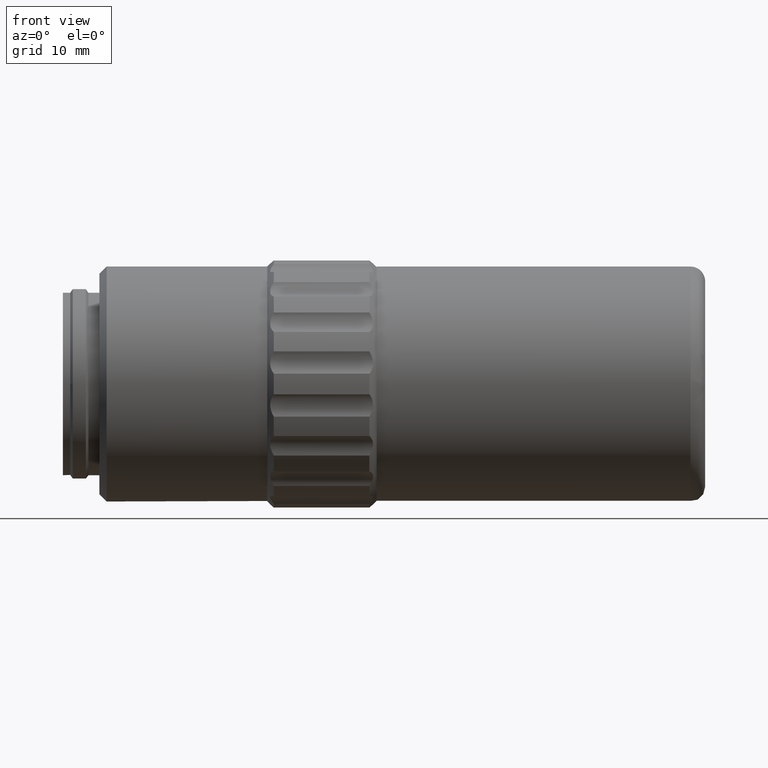
[diagram: clean part render]
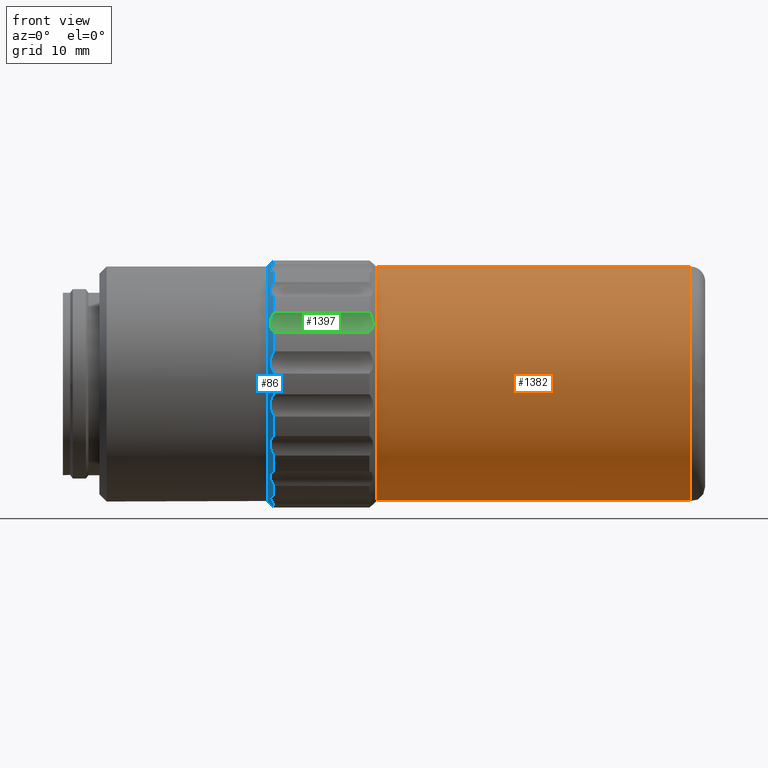
[diagram: same view with three faces highlighted in distinct colors, each labeled with its STEP entity id]
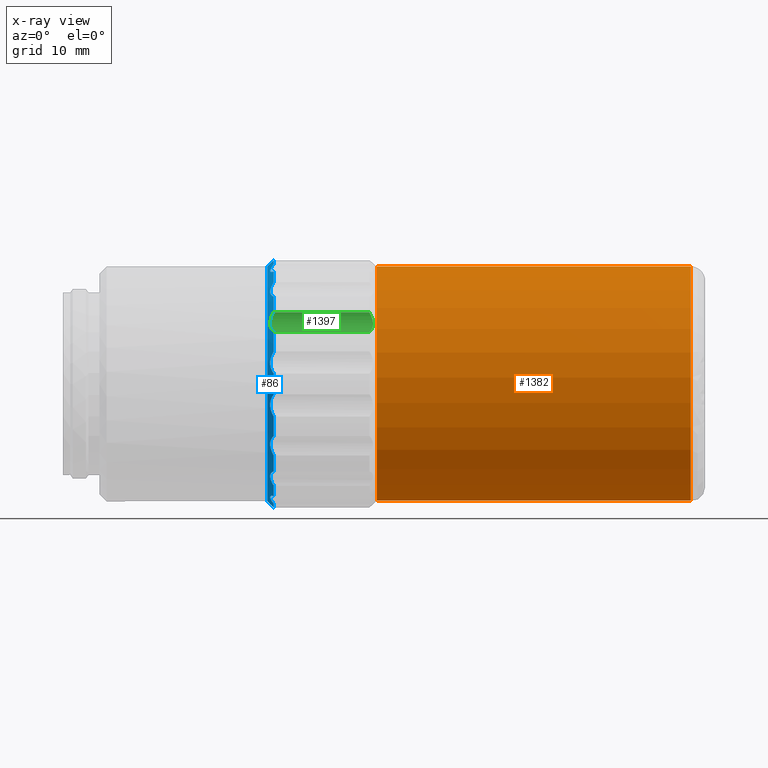
[diagram: x-ray of the same camera — body ghosted, the three highlighted faces saturated]
A machine part, front view with three faces highlighted in distinct colors.
The next image is the same camera in x-ray (body ghosted, the three faces saturated) — at least one of them is partly hidden behind the body in this view.
Their STEP definitions:

[orange] entity #1382 — the highlighted cylindrical surface (bore or boss wall) has radius 16.1 mm, axis along (-1, 0, 0).
#197 = EDGE_LOOP ( 'NONE', ( #1366 ) ) ;
#219 = CYLINDRICAL_SURFACE ( 'NONE', #1283, 16.10000000000000142 ) ;
#323 = EDGE_LOOP ( 'NONE', ( #825 ) ) ;
#419 = CARTESIAN_POINT ( 'NONE',  ( 61.03703999999999752, 46.02096199999999726, 0.000000000000000000 ) ) ;
#567 = CARTESIAN_POINT ( 'NONE',  ( 50.33704000000000178, 46.02096199999999726, 16.10000000000000142 ) ) ;
#581 = CARTESIAN_POINT ( 'NONE',  ( 50.33704000000000178, 46.02096199999999726, 0.000000000000000000 ) ) ;
#673 = FACE_OUTER_BOUND ( 'NONE', #197, .T. ) ;
#746 = DIRECTION ( 'NONE',  ( 1.000000000000000000, -0.000000000000000000, -0.000000000000000000 ) ) ;
#825 = ORIENTED_EDGE ( 'NONE', *, *, #1693, .T. ) ;
#857 = DIRECTION ( 'NONE',  ( -1.000000000000000000, 0.000000000000000000, 0.000000000000000000 ) ) ;
#994 = AXIS2_PLACEMENT_3D ( 'NONE', #581, #746, #1415 ) ;
#1018 = CARTESIAN_POINT ( 'NONE',  ( 93.33704000000001599, 46.02096199999999726, 0.000000000000000000 ) ) ;
#1052 = VERTEX_POINT ( 'NONE', #567 ) ;
#1209 = CIRCLE ( 'NONE', #1423, 16.10000000000000142 ) ;
#1283 = AXIS2_PLACEMENT_3D ( 'NONE', #419, #2117, #1583 ) ;
#1366 = ORIENTED_EDGE ( 'NONE', *, *, #1455, .T. ) ;
#1382 = ADVANCED_FACE ( 'NONE', ( #673, #1801 ), #219, .T. ) ;
#1415 = DIRECTION ( 'NONE',  ( 0.000000000000000000, 0.000000000000000000, 1.000000000000000000 ) ) ;
#1423 = AXIS2_PLACEMENT_3D ( 'NONE', #1018, #857, #1541 ) ;
#1455 = EDGE_CURVE ( 'NONE', #1052, #1052, #1537, .T. ) ;
#1537 = CIRCLE ( 'NONE', #994, 16.10000000000000142 ) ;
#1541 = DIRECTION ( 'NONE',  ( 0.000000000000000000, 0.000000000000000000, 1.000000000000000000 ) ) ;
#1582 = VERTEX_POINT ( 'NONE', #1724 ) ;
#1583 = DIRECTION ( 'NONE',  ( 0.000000000000000000, 0.000000000000000000, 1.000000000000000000 ) ) ;
#1693 = EDGE_CURVE ( 'NONE', #1582, #1582, #1209, .T. ) ;
#1724 = CARTESIAN_POINT ( 'NONE',  ( 93.33704000000001599, 46.02096199999999726, 16.10000000000000142 ) ) ;
#1801 = FACE_OUTER_BOUND ( 'NONE', #323, .T. ) ;
#2117 = DIRECTION ( 'NONE',  ( -1.000000000000000000, 0.000000000000000000, 0.000000000000000000 ) ) ;

[blue] entity #86 — the highlighted conical surface has half-angle 45 deg.
#8 = VERTEX_POINT ( 'NONE', #1923 ) ;
#9 = DIRECTION ( 'NONE',  ( 0.000000000000000000, 0.000000000000000000, 1.000000000000000000 ) ) ;
#14 = CARTESIAN_POINT ( 'NONE',  ( 35.96396204701620292, 52.75789697862285266, 15.31241445645989430 ) ) ;
#28 = CARTESIAN_POINT ( 'NONE',  ( 35.73718579602898160, 62.29579183602519521, -2.721276841238320365 ) ) ;
#32 = CARTESIAN_POINT ( 'NONE',  ( 35.74888686446895747, 40.10850990309083386, -15.41763307084374013 ) ) ;
#40 = CARTESIAN_POINT ( 'NONE',  ( 36.23704000000001457, 29.61726367720591924, 4.463034991433914911 ) ) ;
#41 = CARTESIAN_POINT ( 'NONE',  ( 35.83116349261860023, 45.32016989863365808, -16.57981987161947401 ) ) ;
#46 = CARTESIAN_POINT ( 'NONE',  ( 36.23704000000000036, 46.02096199999999726, 0.000000000000000000 ) ) ;
#52 = VERTEX_POINT ( 'NONE', #1350 ) ;
#58 = EDGE_CURVE ( 'NONE', #1685, #1218, #1110, .T. ) ;
#62 = AXIS2_PLACEMENT_3D ( 'NONE', #1347, #845, #166 ) ;
#63 = VERTEX_POINT ( 'NONE', #1902 ) ;
#65 = CARTESIAN_POINT ( 'NONE',  ( 35.74985286887984870, 40.64711861377924151, -15.61454086166569155 ) ) ;
#71 = B_SPLINE_CURVE_WITH_KNOTS ( 'NONE', 3,
 ( #298, #278, #817, #830, #110, #1695, #1515, #992, #324, #1827, #1683, #961, #1503, #1647 ),
 .UNSPECIFIED., .F., .F.,
 ( 4, 2, 2, 2, 2, 2, 4 ),
 ( 1.110764993427085326E-17, 0.0008570537395405590899, 0.001285580609310832184, 0.001714107479081105169, 0.002142634348851378372, 0.002571161218621651357, 0.003428214958162191257 ),
 .UNSPECIFIED. ) ;
#72 = B_SPLINE_CURVE_WITH_KNOTS ( 'NONE', 3,
 ( #1948, #1403, #1050, #448, #1985, #1590, #2101, #1064, #214, #785, #1937, #14, #1928, #753 ),
 .UNSPECIFIED., .F., .F.,
 ( 4, 2, 2, 2, 2, 2, 4 ),
 ( 3.469446951953614189E-18, 0.0008570537395405902065, 0.001285580609310879021, 0.001714107479081167836, 0.002142634348851456868, 0.002571161218621745466, 0.003428214958162342178 ),
 .UNSPECIFIED. ) ;
#77 = B_SPLINE_CURVE_WITH_KNOTS ( 'NONE', 3,
 ( #684, #1362, #2230, #2215, #2055, #1711, #1875, #722, #516, #1043, #1187, #330, #2080, #1885 ),
 .UNSPECIFIED., .F., .F.,
 ( 4, 2, 2, 2, 2, 2, 4 ),
 ( 9.965227682168975268E-18, 0.0008570537395405649446, 0.001285580609310842375, 0.001714107479081119914, 0.002142634348851397454, 0.002571161218621674776, 0.003428214958162214675 ),
 .UNSPECIFIED. ) ;
#79 = CARTESIAN_POINT ( 'NONE',  ( 36.23704000000000747, 58.08791284195768867, 11.97450196783888821 ) ) ;
#81 = B_SPLINE_CURVE_WITH_KNOTS ( 'NONE', 3,
 ( #1258, #607, #1134, #1456, #425, #972, #1287, #279, #1844, #476, #299, #438, #89, #1988 ),
 .UNSPECIFIED., .F., .F.,
 ( 4, 2, 2, 2, 2, 2, 4 ),
 ( 0.000000000000000000, 0.0008570537395406043011, 0.001285580609310894851, 0.001714107479081185834, 0.002142634348851476384, 0.002571161218621767150, 0.003428214958162323529 ),
 .UNSPECIFIED. ) ;
#83 = CARTESIAN_POINT ( 'NONE',  ( 35.79583389907071478, 35.81385022434189835, 13.03947610223928244 ) ) ;
#86 = ADVANCED_FACE ( 'NONE', ( #1926, #1707 ), #1214, .T. ) ;
#89 = CARTESIAN_POINT ( 'NONE',  ( 36.08992233123989735, 47.35457561164052009, 16.80123075031171354 ) ) ;
#91 = CARTESIAN_POINT ( 'NONE',  ( 35.83116349261860023, 41.00885879755391983, 15.81961940227120245 ) ) ;
#101 = CARTESIAN_POINT ( 'NONE',  ( 35.79717978247136045, 35.81747045796283402, -13.04400552683793713 ) ) ;
#107 = EDGE_CURVE ( 'NONE', #2231, #1514, #1284, .T. ) ;
#110 = CARTESIAN_POINT ( 'NONE',  ( 35.79717978247138888, 62.22181512952327154, 3.433610011084526459 ) ) ;
#112 = DIRECTION ( 'NONE',  ( 0.000000000000000000, 9.796085511398439970E-15, 1.000000000000000000 ) ) ;
#114 = CARTESIAN_POINT ( 'NONE',  ( 35.73718579602896028, 35.52685220674475630, -12.73377765964754715 ) ) ;
#115 = CARTESIAN_POINT ( 'NONE',  ( 36.23704000000001457, 62.42466032279406107, 4.463034991433929122 ) ) ;
#119 = CARTESIAN_POINT ( 'NONE',  ( 35.79583389907067215, 31.40713848021169241, -7.787761549644949710 ) ) ;
#123 = CARTESIAN_POINT ( 'NONE',  ( 36.23704000000002168, 29.08007986503450581, -1.416514203673286065 ) ) ;
#130 = CARTESIAN_POINT ( 'NONE',  ( 35.96396204701619581, 31.01754010897463232, -7.399571673583173137 ) ) ;
#140 = CARTESIAN_POINT ( 'NONE',  ( 35.96396204701627397, 59.93088999195956035, -9.293558664531962776 ) ) ;
#144 = CARTESIAN_POINT ( 'NONE',  ( 36.23704000000000036, 46.02096199999999726, 0.000000000000000000 ) ) ;
#146 = B_SPLINE_CURVE_WITH_KNOTS ( 'NONE', 3,
 ( #1355, #654, #2012, #664, #475, #1853, #1149, #797, #2190, #841, #1525, #140, #1123, #1815 ),
 .UNSPECIFIED., .F., .F.,
 ( 4, 2, 2, 2, 2, 2, 4 ),
 ( 8.673617379884035472E-19, 0.0008570537395405658119, 0.001285580609310841074, 0.001714107479081116662, 0.002142634348851391816, 0.002571161218621667403, 0.003428214958162229421 ),
 .UNSPECIFIED. ) ;
#151 = CARTESIAN_POINT ( 'NONE',  ( 36.09018259085797808, 47.35495267834146915, -16.80145764331209080 ) ) ;
#154 = CARTESIAN_POINT ( 'NONE',  ( 35.96557154307955528, 59.93018010859523770, 9.297543592584471384 ) ) ;
#161 = CARTESIAN_POINT ( 'NONE',  ( 35.83116349261862155, 29.81471811820888007, 3.569201001427935616 ) ) ;
#162 = CARTESIAN_POINT ( 'NONE',  ( 36.23703999999999326, 36.32378364731472686, 13.96297718956139455 ) ) ;
#166 = DIRECTION ( 'NONE',  ( 0.000000000000000000, 8.163404592832032979E-16, 1.000000000000000000 ) ) ;
#170 = CARTESIAN_POINT ( 'NONE',  ( 36.23704000000000036, 46.02096199999999726, 0.000000000000000000 ) ) ;
#172 = DIRECTION ( 'NONE',  ( 1.000000000000000000, -0.000000000000000000, 0.000000000000000000 ) ) ;
#182 = CARTESIAN_POINT ( 'NONE',  ( 36.23704000000002168, 62.96184413496547450, -1.416514203673302941 ) ) ;
#184 = CARTESIAN_POINT ( 'NONE',  ( 35.83178862640948381, 29.81459741884976111, -3.571575765922808010 ) ) ;
#193 = EDGE_CURVE ( 'NONE', #371, #63, #2103, .T. ) ;
#198 = CARTESIAN_POINT ( 'NONE',  ( 36.23704000000002168, 46.02096199999999726, 0.000000000000000000 ) ) ;
#202 = CARTESIAN_POINT ( 'NONE',  ( 35.83116349261862155, 62.22720588179112866, -3.569201001427937392 ) ) ;
#205 = CARTESIAN_POINT ( 'NONE',  ( 36.08992233123988314, 36.24294634268020587, 13.72771975950780998 ) ) ;
#211 = CIRCLE ( 'NONE', #570, 17.00000000000000000 ) ;
#212 = CARTESIAN_POINT ( 'NONE',  ( 35.73718579602898160, 29.79689300327163792, -3.009155866290937453 ) ) ;
#214 = CARTESIAN_POINT ( 'NONE',  ( 35.74888686446897168, 51.93341409690916066, 15.41763307084375256 ) ) ;
#226 = CARTESIAN_POINT ( 'NONE',  ( 35.79583389907072188, 57.08989280161695490, 12.31632407541566110 ) ) ;
#229 = EDGE_CURVE ( 'NONE', #1451, #8, #1172, .T. ) ;
#233 = EDGE_CURVE ( 'NONE', #2041, #2056, #1794, .T. ) ;
#236 = CARTESIAN_POINT ( 'NONE',  ( 35.96396204701622423, 39.28402702137712055, -15.31241445645989430 ) ) ;
#242 = VERTEX_POINT ( 'NONE', #1959 ) ;
#244 = EDGE_CURVE ( 'NONE', #1099, #867, #431, .T. ) ;
#252 = CARTESIAN_POINT ( 'NONE',  ( 35.74888686446895036, 31.58149741732382054, -8.010141189208830781 ) ) ;
#270 = CARTESIAN_POINT ( 'NONE',  ( 35.74985286887989133, 35.63071352123775881, -12.83490613950239201 ) ) ;
#278 = CARTESIAN_POINT ( 'NONE',  ( 36.09018259085799940, 62.33552269872134133, 4.231266864385910154 ) ) ;
#279 = CARTESIAN_POINT ( 'NONE',  ( 35.73689677453402425, 46.16201308822037674, 16.49987880921161576 ) ) ;
#282 = CARTESIAN_POINT ( 'NONE',  ( 36.09018259085797098, 39.02098385211959197, 15.33195408286589867 ) ) ;
#294 = EDGE_CURVE ( 'NONE', #371, #1892, #1942, .T. ) ;
#295 = CARTESIAN_POINT ( 'NONE',  ( 36.23704000000001457, 29.61726367720591924, 4.463034991433914911 ) ) ;
#298 = CARTESIAN_POINT ( 'NONE',  ( 36.23704000000001457, 62.42466032279406107, 4.463034991433929122 ) ) ;
#299 = CARTESIAN_POINT ( 'NONE',  ( 35.83116349261857891, 46.72175410136634355, 16.57981987161947046 ) ) ;
#302 = CARTESIAN_POINT ( 'NONE',  ( 36.23704000000000036, 53.26466578228018989, -15.37949139323468017 ) ) ;
#304 = CARTESIAN_POINT ( 'NONE',  ( 36.23704000000000036, 36.32378364731471976, -13.96297718956139811 ) ) ;
#306 = CARTESIAN_POINT ( 'NONE',  ( 36.23704000000001457, 62.96184413496550292, 1.416514203673278960 ) ) ;
#312 = CARTESIAN_POINT ( 'NONE',  ( 36.23704000000001457, 32.13297559990991914, 9.804276299192830280 ) ) ;
#317 = CARTESIAN_POINT ( 'NONE',  ( 36.23704000000001457, 61.45570754086771359, 7.125210880294364557 ) ) ;
#318 = CIRCLE ( 'NONE', #641, 17.00000000000000000 ) ;
#324 = CARTESIAN_POINT ( 'NONE',  ( 35.74888686446903563, 62.32924995403242008, 2.588482820839967058 ) ) ;
#330 = CARTESIAN_POINT ( 'NONE',  ( 35.96396204701621713, 55.91343442325894131, -13.49056406336131708 ) ) ;
#332 = ORIENTED_EDGE ( 'NONE', *, *, #2007, .F. ) ;
#333 = DIRECTION ( 'NONE',  ( -1.000000000000000000, -0.000000000000000000, -0.000000000000000000 ) ) ;
#335 = CARTESIAN_POINT ( 'NONE',  ( 35.73689677453402425, 45.87991091177962488, -16.49987880921161221 ) ) ;
#336 = VERTEX_POINT ( 'NONE', #1481 ) ;
#338 = CARTESIAN_POINT ( 'NONE',  ( 36.23704000000001457, 29.08007986503451647, 1.416514203673290728 ) ) ;
#339 = DIRECTION ( 'NONE',  ( 0.000000000000000000, 0.000000000000000000, 1.000000000000000000 ) ) ;
#343 = ORIENTED_EDGE ( 'NONE', *, *, #435, .F. ) ;
#349 = CARTESIAN_POINT ( 'NONE',  ( 35.83116349261861444, 60.72990324967569364, 7.683006173255031435 ) ) ;
#355 = ORIENTED_EDGE ( 'NONE', *, *, #633, .F. ) ;
#362 = AXIS2_PLACEMENT_3D ( 'NONE', #839, #1523, #505 ) ;
#364 = AXIS2_PLACEMENT_3D ( 'NONE', #548, #1020, #1701 ) ;
#371 = VERTEX_POINT ( 'NONE', #302 ) ;
#372 = CARTESIAN_POINT ( 'NONE',  ( 35.79717978247138888, 62.41914792436490700, -2.314480119284883397 ) ) ;
#380 = CARTESIAN_POINT ( 'NONE',  ( 35.96557154307955528, 29.77062519033893651, -3.979600334337186407 ) ) ;
#381 = CARTESIAN_POINT ( 'NONE',  ( 36.23704000000001457, 44.47420285922230931, -16.92948717948720372 ) ) ;
#382 = ORIENTED_EDGE ( 'NONE', *, *, #770, .F. ) ;
#385 = CARTESIAN_POINT ( 'NONE',  ( 35.73718579602896028, 35.30292207748090760, 12.54587797077276079 ) ) ;
#393 = AXIS2_PLACEMENT_3D ( 'NONE', #2123, #563, #891 ) ;
#394 = CARTESIAN_POINT ( 'NONE',  ( 35.96557154307952686, 34.44935860872440259, 12.08340433005123060 ) ) ;
#395 = CARTESIAN_POINT ( 'NONE',  ( 35.33704000000000178, 29.92096199999999584, 0.000000000000000000 ) ) ;
#404 = CARTESIAN_POINT ( 'NONE',  ( 36.23704000000000036, 46.02096199999999726, 0.000000000000000000 ) ) ;
#405 = CARTESIAN_POINT ( 'NONE',  ( 35.96396204701623134, 36.12848957674106742, 13.49056406336132596 ) ) ;
#410 = CARTESIAN_POINT ( 'NONE',  ( 36.08992233123989735, 44.68734838835944601, -16.80123075031171354 ) ) ;
#412 = AXIS2_PLACEMENT_3D ( 'NONE', #1717, #1733, #704 ) ;
#414 = CARTESIAN_POINT ( 'NONE',  ( 35.79717978247131072, 31.97150365186637089, -8.767556099430422023 ) ) ;
#424 = CARTESIAN_POINT ( 'NONE',  ( 35.73689677453396740, 31.66112224774805739, -8.127785578975515790 ) ) ;
#425 = CARTESIAN_POINT ( 'NONE',  ( 35.79717978247136045, 45.45276486285488460, 16.55096588861033169 ) ) ;
#429 = CARTESIAN_POINT ( 'NONE',  ( 36.23703999999998615, 41.68421451916363907, -16.43753695927278713 ) ) ;
#431 = CIRCLE ( 'NONE', #1396, 17.00000000000000000 ) ;
#435 = EDGE_CURVE ( 'NONE', #2231, #531, #1139, .T. ) ;
#437 = CARTESIAN_POINT ( 'NONE',  ( 35.83178862640944828, 56.13999288115841324, 13.15323611948972271 ) ) ;
#438 = CARTESIAN_POINT ( 'NONE',  ( 35.96396204701621713, 47.11445589906592346, 16.69313033811514657 ) ) ;
#441 = CARTESIAN_POINT ( 'NONE',  ( 36.23704000000000036, 46.02096199999999726, 0.000000000000000000 ) ) ;
#444 = CARTESIAN_POINT ( 'NONE',  ( 35.83178862640943407, 52.35248318087394637, -15.33995586450727089 ) ) ;
#448 = CARTESIAN_POINT ( 'NONE',  ( 35.83178862640940565, 51.03106894574500529, 15.82091131322982491 ) ) ;
#455 = CARTESIAN_POINT ( 'NONE',  ( 35.83116349261860023, 34.82682132065499303, -12.25041840084325351 ) ) ;
#475 = CARTESIAN_POINT ( 'NONE',  ( 35.79717978247140309, 60.63861748527884288, -7.783409789179930982 ) ) ;
#476 = CARTESIAN_POINT ( 'NONE',  ( 35.79583389907071478, 46.58347441928597021, 16.54982318938170849 ) ) ;
#477 = ORIENTED_EDGE ( 'NONE', *, *, #1843, .T. ) ;
#479 = CARTESIAN_POINT ( 'NONE',  ( 35.96396204701623844, 34.45315972681315486, -12.08479540418656484 ) ) ;
#491 = CARTESIAN_POINT ( 'NONE',  ( 36.09018259085796387, 36.24308934852177089, -13.72813594343332433 ) ) ;
#492 = CARTESIAN_POINT ( 'NONE',  ( 35.73689677453398872, 51.53170824842820252, -15.55305667428727823 ) ) ;
#496 = CARTESIAN_POINT ( 'NONE',  ( 36.08992233123988314, 30.80386254956552960, -7.245672108642431830 ) ) ;
#503 = DIRECTION ( 'NONE',  ( 1.000000000000000000, -0.000000000000000000, -0.000000000000000000 ) ) ;
#505 = DIRECTION ( 'NONE',  ( 0.000000000000000000, 0.000000000000000000, 1.000000000000000000 ) ) ;
#507 = EDGE_CURVE ( 'NONE', #542, #606, #1469, .T. ) ;
#508 = CARTESIAN_POINT ( 'NONE',  ( 35.73718579602893186, 46.16712201152107298, -16.50012336588021356 ) ) ;
#513 = CARTESIAN_POINT ( 'NONE',  ( 36.08992233123993287, 61.23806145043451465, 7.245672108642470022 ) ) ;
#516 = CARTESIAN_POINT ( 'NONE',  ( 35.74888686446900721, 56.41679785712320694, -12.82915025000379750 ) ) ;
#517 = ORIENTED_EDGE ( 'NONE', *, *, #1488, .T. ) ;
#522 = DIRECTION ( 'NONE',  ( 0.000000000000000000, -1.591863895602246436E-14, 1.000000000000000000 ) ) ;
#523 = DIRECTION ( 'NONE',  ( 0.000000000000000000, 1.795949010423047196E-14, 1.000000000000000000 ) ) ;
#531 = VERTEX_POINT ( 'NONE', #820 ) ;
#532 = CARTESIAN_POINT ( 'NONE',  ( 36.23704000000000036, 50.35770948083630572, 16.43753695927281555 ) ) ;
#537 = VERTEX_POINT ( 'NONE', #2193 ) ;
#539 = ORIENTED_EDGE ( 'NONE', *, *, #1275, .F. ) ;
#540 = CARTESIAN_POINT ( 'NONE',  ( 35.79717978247138888, 29.82010887047673364, -3.433610011084526015 ) ) ;
#541 = AXIS2_PLACEMENT_3D ( 'NONE', #198, #172, #1182 ) ;
#542 = VERTEX_POINT ( 'NONE', #532 ) ;
#545 = CARTESIAN_POINT ( 'NONE',  ( 35.73689677453405977, 60.38080175225201884, 8.127785578975537106 ) ) ;
#546 = CIRCLE ( 'NONE', #2014, 17.00000000000000000 ) ;
#548 = CARTESIAN_POINT ( 'NONE',  ( 36.23704000000000036, 46.02096199999999726, 0.000000000000000000 ) ) ;
#554 = CARTESIAN_POINT ( 'NONE',  ( 35.74888686446903563, 62.23105311343569923, -3.145384777660003461 ) ) ;
#555 = CARTESIAN_POINT ( 'NONE',  ( 36.23704000000001457, 30.58621645913229514, 7.125210880294345905 ) ) ;
#556 = CARTESIAN_POINT ( 'NONE',  ( 35.73689677453398161, 40.24512641806277458, -15.45657204746853175 ) ) ;
#563 = DIRECTION ( 'NONE',  ( 1.000000000000000000, -0.000000000000000000, -0.000000000000000000 ) ) ;
#566 = DIRECTION ( 'NONE',  ( 0.000000000000000000, -1.000000000000000000, -8.881784197001252323E-15 ) ) ;
#570 = AXIS2_PLACEMENT_3D ( 'NONE', #144, #1009, #523 ) ;
#575 = CARTESIAN_POINT ( 'NONE',  ( 36.23704000000000747, 62.42466032279407528, -4.463034991433911358 ) ) ;
#587 = ORIENTED_EDGE ( 'NONE', *, *, #596, .T. ) ;
#595 = ORIENTED_EDGE ( 'NONE', *, *, #1634, .F. ) ;
#596 = EDGE_CURVE ( 'NONE', #867, #1388, #1163, .T. ) ;
#597 = CARTESIAN_POINT ( 'NONE',  ( 35.74985286887989133, 56.41121047876224281, 12.83490613950239201 ) ) ;
#598 = CARTESIAN_POINT ( 'NONE',  ( 35.74888686446903563, 31.86424395090690354, 8.499872551038864188 ) ) ;
#601 = EDGE_CURVE ( 'NONE', #542, #2167, #72, .T. ) ;
#606 = VERTEX_POINT ( 'NONE', #1769 ) ;
#607 = CARTESIAN_POINT ( 'NONE',  ( 36.09018259085798519, 44.68697132165852537, 16.80145764331209435 ) ) ;
#617 = CARTESIAN_POINT ( 'NONE',  ( 35.79717978247138177, 31.40330651472119428, 7.783409789179931870 ) ) ;
#620 = CARTESIAN_POINT ( 'NONE',  ( 35.73689677453403135, 35.30699293778217651, -12.54897458209228489 ) ) ;
#621 = CARTESIAN_POINT ( 'NONE',  ( 36.09018259085796387, 53.02094014788038834, -15.33195408286590578 ) ) ;
#632 = CARTESIAN_POINT ( 'NONE',  ( 35.79583389907072899, 40.88917787025663841, 15.74413730464016936 ) ) ;
#633 = EDGE_CURVE ( 'NONE', #52, #2185, #1650, .T. ) ;
#640 = CARTESIAN_POINT ( 'NONE',  ( 35.83178862640947671, 31.31040182005773076, 7.681264582162550703 ) ) ;
#641 = AXIS2_PLACEMENT_3D ( 'NONE', #404, #771, #1267 ) ;
#644 = CARTESIAN_POINT ( 'NONE',  ( 36.08992233123991866, 41.52778952056897310, 16.24411527478358153 ) ) ;
#653 = CIRCLE ( 'NONE', #364, 17.00000000000000000 ) ;
#654 = CARTESIAN_POINT ( 'NONE',  ( 36.09018259085801361, 61.23844647888724779, -7.245459005800717556 ) ) ;
#664 = CARTESIAN_POINT ( 'NONE',  ( 35.83178862640947671, 60.73152217994228153, -7.681264582162549814 ) ) ;
#672 = CIRCLE ( 'NONE', #412, 17.00000000000000000 ) ;
#675 = ORIENTED_EDGE ( 'NONE', *, *, #2227, .T. ) ;
#676 = CARTESIAN_POINT ( 'NONE',  ( 36.23703999999998615, 32.13297559991000441, -9.804276299192858701 ) ) ;
#680 = CARTESIAN_POINT ( 'NONE',  ( 35.83178862640944118, 46.72407182862870911, -16.58035111081103352 ) ) ;
#683 = CARTESIAN_POINT ( 'NONE',  ( 35.79583389907067215, 51.15274612974336321, -15.74413730464013028 ) ) ;
#684 = CARTESIAN_POINT ( 'NONE',  ( 36.23704000000000747, 58.08791284195767446, -11.97450196783888110 ) ) ;
#689 = CARTESIAN_POINT ( 'NONE',  ( 35.73689677453404556, 29.79624668935391796, 3.004082092195017761 ) ) ;
#690 = CIRCLE ( 'NONE', #827, 17.00000000000000000 ) ;
#700 = DIRECTION ( 'NONE',  ( 0.000000000000000000, 8.163404592832032979E-16, 1.000000000000000000 ) ) ;
#704 = DIRECTION ( 'NONE',  ( 0.000000000000000000, 0.000000000000000000, 1.000000000000000000 ) ) ;
#706 = DIRECTION ( 'NONE',  ( 0.000000000000000000, 2.857191607491211592E-15, 1.000000000000000000 ) ) ;
#707 = CARTESIAN_POINT ( 'NONE',  ( 35.73718579602898160, 60.23740799466895623, 8.376639965934803200 ) ) ;
#708 = CARTESIAN_POINT ( 'NONE',  ( 35.83116349261855049, 51.03306520244606048, -15.81961940227115804 ) ) ;
#715 = VERTEX_POINT ( 'NONE', #676 ) ;
#719 = CARTESIAN_POINT ( 'NONE',  ( 35.79717978247139598, 60.07042034813373022, 8.767556099430422023 ) ) ;
#720 = CARTESIAN_POINT ( 'NONE',  ( 36.23703999999998615, 41.68421451916363907, -16.43753695927278713 ) ) ;
#722 = CARTESIAN_POINT ( 'NONE',  ( 35.73689677453403135, 56.51882825756363360, -12.73030636577400188 ) ) ;
#730 = AXIS2_PLACEMENT_3D ( 'NONE', #441, #950, #112 ) ;
#731 = CARTESIAN_POINT ( 'NONE',  ( 36.23704000000002168, 62.96184413496547450, -1.416514203673302941 ) ) ;
#735 = CARTESIAN_POINT ( 'NONE',  ( 35.83178862640941276, 41.01085505425496081, -15.82091131322981425 ) ) ;
#742 = CARTESIAN_POINT ( 'NONE',  ( 35.96396204701625265, 62.27060295615643071, -3.975612932441880520 ) ) ;
#750 = B_SPLINE_CURVE_WITH_KNOTS ( 'NONE', 3,
 ( #1696, #151, #2211, #680, #1356, #2049, #508, #335, #1773, #1047, #41, #1744, #410, #381 ),
 .UNSPECIFIED., .F., .F.,
 ( 4, 2, 2, 2, 2, 2, 4 ),
 ( 0.000000000000000000, 0.0008570537395405808823, 0.001285580609310869480, 0.001714107479081158078, 0.002142634348851446893, 0.002571161218621735058, 0.003428214958162337407 ),
 .UNSPECIFIED. ) ;
#752 = CARTESIAN_POINT ( 'NONE',  ( 35.79717978247136045, 56.22445354203718182, 13.04400552683793890 ) ) ;
#753 = CARTESIAN_POINT ( 'NONE',  ( 36.23704000000000036, 53.26466578228020410, 15.37949139323468017 ) ) ;
#755 = CARTESIAN_POINT ( 'NONE',  ( 35.74985286887989844, 35.18529463847769989, 12.46115531925904918 ) ) ;
#763 = CARTESIAN_POINT ( 'NONE',  ( 36.09018259085798519, 34.19929705588980795, 12.01319058448290278 ) ) ;
#770 = EDGE_CURVE ( 'NONE', #1132, #63, #1978, .T. ) ;
#771 = DIRECTION ( 'NONE',  ( 1.000000000000000000, -0.000000000000000000, -0.000000000000000000 ) ) ;
#781 = CARTESIAN_POINT ( 'NONE',  ( 35.74888686446900010, 35.19193332115170136, -12.46565831306565819 ) ) ;
#782 = CARTESIAN_POINT ( 'NONE',  ( 36.23704000000000747, 58.08791284195768867, 11.97450196783888821 ) ) ;
#783 = EDGE_LOOP ( 'NONE', ( #1001 ) ) ;
#785 = CARTESIAN_POINT ( 'NONE',  ( 35.79583389907068636, 52.20992366875024260, 15.35935614810682459 ) ) ;
#790 = CARTESIAN_POINT ( 'NONE',  ( 35.74888686446900721, 40.63989956541261250, 15.61104309072567631 ) ) ;
#797 = CARTESIAN_POINT ( 'NONE',  ( 35.73689677453406688, 60.23975066403165357, -8.372093230236105299 ) ) ;
#811 = CARTESIAN_POINT ( 'NONE',  ( 35.96557154307952686, 39.27997936338322660, 15.31240733331347315 ) ) ;
#817 = CARTESIAN_POINT ( 'NONE',  ( 35.96557154307955528, 62.27129880966106867, 3.979600334337187739 ) ) ;
#818 = CARTESIAN_POINT ( 'NONE',  ( 35.73689677453404556, 31.80217333596835516, 8.372093230236096417 ) ) ;
#820 = CARTESIAN_POINT ( 'NONE',  ( 36.23703999999999326, 30.58621645913231646, -7.125210880294334359 ) ) ;
#822 = CARTESIAN_POINT ( 'NONE',  ( 35.79583389907072188, 34.95203119838303252, -12.31632407541566110 ) ) ;
#823 = EDGE_CURVE ( 'NONE', #336, #2167, #904, .T. ) ;
#827 = AXIS2_PLACEMENT_3D ( 'NONE', #170, #1364, #1407 ) ;
#830 = CARTESIAN_POINT ( 'NONE',  ( 35.83178862640948381, 62.22732658115026538, 3.571575765922809342 ) ) ;
#839 = CARTESIAN_POINT ( 'NONE',  ( 36.23704000000000036, 46.02096199999999726, 0.000000000000000000 ) ) ;
#841 = CARTESIAN_POINT ( 'NONE',  ( 35.79583389907075741, 60.07227310050242863, -8.762061639736757002 ) ) ;
#842 = CARTESIAN_POINT ( 'NONE',  ( 36.08992233123993287, 32.13747616120599560, 9.555558641669252395 ) ) ;
#845 = DIRECTION ( 'NONE',  ( 1.000000000000000000, -0.000000000000000000, -0.000000000000000000 ) ) ;
#863 = CARTESIAN_POINT ( 'NONE',  ( 36.23704000000002168, 29.08007986503450581, -1.416514203673286065 ) ) ;
#866 = CIRCLE ( 'NONE', #1328, 16.10000000000000142 ) ;
#867 = VERTEX_POINT ( 'NONE', #182 ) ;
#876 = CARTESIAN_POINT ( 'NONE',  ( 35.96396204701624555, 29.77132104384357092, 3.975612932441878744 ) ) ;
#881 = EDGE_CURVE ( 'NONE', #2041, #1548, #546, .T. ) ;
#891 = DIRECTION ( 'NONE',  ( 0.000000000000000000, -1.061242597068164396E-14, 1.000000000000000000 ) ) ;
#902 = CARTESIAN_POINT ( 'NONE',  ( 35.73689677453407398, 62.24567731064610143, -3.004082092195023534 ) ) ;
#904 = CIRCLE ( 'NONE', #1944, 17.00000000000000000 ) ;
#906 = CARTESIAN_POINT ( 'NONE',  ( 35.83178862640945539, 34.82470436459485086, 12.24933554730702312 ) ) ;
#922 = CARTESIAN_POINT ( 'NONE',  ( 35.79717978247136045, 34.94694193895058731, 12.31354536760547447 ) ) ;
#928 = ORIENTED_EDGE ( 'NONE', *, *, #956, .F. ) ;
#929 = CARTESIAN_POINT ( 'NONE',  ( 35.83178862640941276, 32.01351164868651722, -8.899086528648506800 ) ) ;
#930 = CARTESIAN_POINT ( 'NONE',  ( 36.23704000000000036, 36.32378364731471976, -13.96297718956139811 ) ) ;
#932 = CARTESIAN_POINT ( 'NONE',  ( 35.96557154307948423, 41.34222858161459158, -16.06300466438840147 ) ) ;
#938 = CARTESIAN_POINT ( 'NONE',  ( 35.74985286887982028, 31.86752573897104313, -8.507192313874570644 ) ) ;
#940 = EDGE_CURVE ( 'NONE', #1841, #8, #2226, .T. ) ;
#950 = DIRECTION ( 'NONE',  ( 1.000000000000000000, -0.000000000000000000, -0.000000000000000000 ) ) ;
#953 = CARTESIAN_POINT ( 'NONE',  ( 36.23704000000000036, 53.26466578228018989, -15.37949139323468017 ) ) ;
#956 = EDGE_CURVE ( 'NONE', #1451, #1996, #690, .T. ) ;
#961 = CARTESIAN_POINT ( 'NONE',  ( 35.96396204701625976, 62.65036940188181802, 1.821850393098586540 ) ) ;
#964 = CARTESIAN_POINT ( 'NONE',  ( 35.83178862640944118, 39.68944081912604815, 15.33995586450728332 ) ) ;
#972 = CARTESIAN_POINT ( 'NONE',  ( 35.74985286887986291, 45.73023547181937687, 16.51083150983224002 ) ) ;
#980 = CARTESIAN_POINT ( 'NONE',  ( 35.83116349261854339, 31.31202075032436127, -7.683006173254998572 ) ) ;
#986 = EDGE_CURVE ( 'NONE', #1514, #1685, #1140, .T. ) ;
#990 = ORIENTED_EDGE ( 'NONE', *, *, #229, .T. ) ;
#992 = CARTESIAN_POINT ( 'NONE',  ( 35.73689677453405267, 62.29466383950087760, 2.726265681694554743 ) ) ;
#993 = CARTESIAN_POINT ( 'NONE',  ( 36.23704000000000747, 33.95401115804232006, 11.97450196783887932 ) ) ;
#997 = CARTESIAN_POINT ( 'NONE',  ( 36.23704000000002168, 59.90894840009004696, 9.804276299192840938 ) ) ;
#999 = CARTESIAN_POINT ( 'NONE',  ( 36.09018259085794966, 41.52806624538893487, -16.24445744886877563 ) ) ;
#1001 = ORIENTED_EDGE ( 'NONE', *, *, #1217, .T. ) ;
#1006 = ORIENTED_EDGE ( 'NONE', *, *, #940, .F. ) ;
#1009 = DIRECTION ( 'NONE',  ( 1.000000000000000000, -0.000000000000000000, -0.000000000000000000 ) ) ;
#1011 = ORIENTED_EDGE ( 'NONE', *, *, #823, .F. ) ;
#1012 = DIRECTION ( 'NONE',  ( 1.000000000000000000, -0.000000000000000000, -0.000000000000000000 ) ) ;
#1014 = CARTESIAN_POINT ( 'NONE',  ( 35.79583389907074320, 29.62488855559160683, -2.319880045867567020 ) ) ;
#1019 = CARTESIAN_POINT ( 'NONE',  ( 36.08992233123986892, 50.51413447943099300, -16.24411527478352468 ) ) ;
#1020 = DIRECTION ( 'NONE',  ( 1.000000000000000000, -0.000000000000000000, -0.000000000000000000 ) ) ;
#1022 = CARTESIAN_POINT ( 'NONE',  ( 36.23704000000000036, 46.02096199999999726, 0.000000000000000000 ) ) ;
#1024 = ORIENTED_EDGE ( 'NONE', *, *, #507, .F. ) ;
#1025 = CARTESIAN_POINT ( 'NONE',  ( 36.09018259085799940, 29.70640130127867451, -4.231266864385912818 ) ) ;
#1027 = ORIENTED_EDGE ( 'NONE', *, *, #1663, .T. ) ;
#1035 = CARTESIAN_POINT ( 'NONE',  ( 35.96557154307956949, 29.38953693794699262, 1.818341456876846340 ) ) ;
#1043 = CARTESIAN_POINT ( 'NONE',  ( 35.79583389907070057, 56.22807377565811748, -13.03947610223928244 ) ) ;
#1045 = DIRECTION ( 'NONE',  ( 0.000000000000000000, -3.673532066774414791E-15, 1.000000000000000000 ) ) ;
#1047 = CARTESIAN_POINT ( 'NONE',  ( 35.79583389907069346, 45.45844958071403141, -16.54982318938171559 ) ) ;
#1048 = VERTEX_POINT ( 'NONE', #2129 ) ;
#1050 = CARTESIAN_POINT ( 'NONE',  ( 35.96557154307949844, 50.69969541838538873, 16.06300466438842633 ) ) ;
#1064 = CARTESIAN_POINT ( 'NONE',  ( 35.73689677453400293, 51.79679758193720573, 15.45657204746854241 ) ) ;
#1070 = EDGE_CURVE ( 'NONE', #242, #1093, #1078, .T. ) ;
#1073 = ORIENTED_EDGE ( 'NONE', *, *, #244, .T. ) ;
#1075 = CARTESIAN_POINT ( 'NONE',  ( 36.23703999999999326, 55.71814035268528187, 13.96297718956139278 ) ) ;
#1076 = CARTESIAN_POINT ( 'NONE',  ( 35.83178862640946249, 62.47151406203237656, -2.186719745017576599 ) ) ;
#1078 = CIRCLE ( 'NONE', #1652, 17.00000000000000000 ) ;
#1080 = VERTEX_POINT ( 'NONE', #395 ) ;
#1091 = B_SPLINE_CURVE_WITH_KNOTS ( 'NONE', 3,
 ( #304, #491, #2165, #2182, #101, #270, #114, #620, #781, #822, #455, #479, #2173, #1154 ),
 .UNSPECIFIED., .F., .F.,
 ( 4, 2, 2, 2, 2, 2, 4 ),
 ( 3.469446951953614189E-18, 0.0008570537395405549699, 0.001285580609310830883, 0.001714107479081106470, 0.002142634348851382275, 0.002571161218621658296, 0.003428214958162214242 ),
 .UNSPECIFIED. ) ;
#1093 = VERTEX_POINT ( 'NONE', #782 ) ;
#1097 = CARTESIAN_POINT ( 'NONE',  ( 36.23704000000000747, 62.42466032279407528, -4.463034991433911358 ) ) ;
#1099 = VERTEX_POINT ( 'NONE', #306 ) ;
#1110 = B_SPLINE_CURVE_WITH_KNOTS ( 'NONE', 3,
 ( #2046, #1702, #1035, #1205, #1573, #1400, #2098, #689, #2074, #1889, #161, #876, #1219, #40 ),
 .UNSPECIFIED., .F., .F.,
 ( 4, 2, 2, 2, 2, 2, 4 ),
 ( 1.026505302508028173E-17, 0.0008570537395405585478, 0.001285580609310830232, 0.001714107479081102134, 0.002142634348851374035, 0.002571161218621645719, 0.003428214958162190389 ),
 .UNSPECIFIED. ) ;
#1112 = CARTESIAN_POINT ( 'NONE',  ( 36.23703999999998615, 32.13297559991000441, -9.804276299192858701 ) ) ;
#1116 = CARTESIAN_POINT ( 'NONE',  ( 36.23704000000000036, 38.77725821771979753, 15.37949139323466952 ) ) ;
#1123 = CARTESIAN_POINT ( 'NONE',  ( 36.08992233123994708, 59.90444783879402024, -9.555558641669263054 ) ) ;
#1128 = CARTESIAN_POINT ( 'NONE',  ( 35.74985286887984870, 51.94119253261681735, -15.41567220399188720 ) ) ;
#1130 = CIRCLE ( 'NONE', #62, 17.00000000000000000 ) ;
#1132 = VERTEX_POINT ( 'NONE', #1821 ) ;
#1134 = CARTESIAN_POINT ( 'NONE',  ( 35.96557154307953397, 44.92366211032618395, 16.69450802511422793 ) ) ;
#1139 = CIRCLE ( 'NONE', #2160, 17.00000000000000000 ) ;
#1140 = CIRCLE ( 'NONE', #1365, 17.00000000000002132 ) ;
#1141 = CARTESIAN_POINT ( 'NONE',  ( 35.73718579602892476, 51.80168204276991162, -15.45505450088583821 ) ) ;
#1149 = CARTESIAN_POINT ( 'NONE',  ( 35.73718579602899581, 60.38356800619004616, -8.123483399945440553 ) ) ;
#1151 = ORIENTED_EDGE ( 'NONE', *, *, #601, .T. ) ;
#1154 = CARTESIAN_POINT ( 'NONE',  ( 36.23704000000000747, 33.95401115804230585, -11.97450196783888821 ) ) ;
#1157 = VERTEX_POINT ( 'NONE', #115 ) ;
#1163 = B_SPLINE_CURVE_WITH_KNOTS ( 'NONE', 3,
 ( #731, #1222, #1776, #1076, #372, #1758, #28, #902, #554, #1296, #202, #742, #1235, #575 ),
 .UNSPECIFIED., .F., .F.,
 ( 4, 2, 2, 2, 2, 2, 4 ),
 ( 2.170571666196656259E-17, 0.0008570537395405614751, 0.001285580609310831316, 0.001714107479081101266, 0.002142634348851370999, 0.002571161218621640949, 0.003428214958162183017 ),
 .UNSPECIFIED. ) ;
#1169 = B_SPLINE_CURVE_WITH_KNOTS ( 'NONE', 3,
 ( #1116, #282, #811, #964, #1336, #1507, #1991, #1483, #790, #632, #91, #1819, #644, #2157 ),
 .UNSPECIFIED., .F., .F.,
 ( 4, 2, 2, 2, 2, 2, 4 ),
 ( 0.000000000000000000, 0.0008570537395405690645, 0.001285580609310853651, 0.001714107479081138129, 0.002142634348851424342, 0.002571161218621711205, 0.003428214958162284064 ),
 .UNSPECIFIED. ) ;
#1172 = B_SPLINE_CURVE_WITH_KNOTS ( 'NONE', 3,
 ( #720, #999, #932, #735, #1581, #65, #1604, #556, #32, #1268, #1405, #236, #1950, #1623 ),
 .UNSPECIFIED., .F., .F.,
 ( 4, 2, 2, 2, 2, 2, 4 ),
 ( 0.000000000000000000, 0.0008570537395405757866, 0.001285580609310860807, 0.001714107479081148104, 0.002142634348851435618, 0.002571161218621722915, 0.003428214958162297942 ),
 .UNSPECIFIED. ) ;
#1182 = DIRECTION ( 'NONE',  ( 0.000000000000000000, 0.000000000000000000, -1.000000000000000000 ) ) ;
#1184 = ORIENTED_EDGE ( 'NONE', *, *, #1914, .T. ) ;
#1187 = CARTESIAN_POINT ( 'NONE',  ( 35.83116349261857891, 56.14142688927832836, -13.15133936029216422 ) ) ;
#1193 = ORIENTED_EDGE ( 'NONE', *, *, #2067, .T. ) ;
#1195 = EDGE_LOOP ( 'NONE', ( #675, #1073, #587, #2199, #2161, #355, #1227, #1333, #2021, #382, #1193, #928, #990, #1006, #1454, #539, #1383, #343, #1373, #1619, #1826, #1755, #1184, #2217, #1243, #332, #517, #595, #477, #1024, #1151, #1011, #1485, #1768, #1027, #1838 ) ) ;
#1199 = CARTESIAN_POINT ( 'NONE',  ( 35.74888686446896457, 51.40202443458737491, -15.61104309072563545 ) ) ;
#1202 = CARTESIAN_POINT ( 'NONE',  ( 36.23704000000000036, 46.02096199999999726, 0.000000000000000000 ) ) ;
#1204 = VERTEX_POINT ( 'NONE', #1689 ) ;
#1205 = CARTESIAN_POINT ( 'NONE',  ( 35.83178862640946249, 29.57040993796758954, 2.186719745017571270 ) ) ;
#1212 = CARTESIAN_POINT ( 'NONE',  ( 36.23704000000000747, 33.95401115804230585, -11.97450196783888821 ) ) ;
#1214 = CONICAL_SURFACE ( 'NONE', #541, 17.00000000000002132, 0.7853981633974482790 ) ;
#1217 = EDGE_CURVE ( 'NONE', #1080, #1080, #866, .T. ) ;
#1218 = VERTEX_POINT ( 'NONE', #295 ) ;
#1219 = CARTESIAN_POINT ( 'NONE',  ( 36.08992233123992577, 29.70655927031906174, 4.230856126619377378 ) ) ;
#1220 = AXIS2_PLACEMENT_3D ( 'NONE', #1202, #1585, #9 ) ;
#1222 = CARTESIAN_POINT ( 'NONE',  ( 36.09018259085800651, 62.79881279935867155, -1.603818139432592549 ) ) ;
#1227 = ORIENTED_EDGE ( 'NONE', *, *, #1291, .T. ) ;
#1235 = CARTESIAN_POINT ( 'NONE',  ( 36.08992233123991866, 62.33536472968093278, -4.230856126619384483 ) ) ;
#1243 = ORIENTED_EDGE ( 'NONE', *, *, #233, .T. ) ;
#1256 = CARTESIAN_POINT ( 'NONE',  ( 35.96557154307949133, 32.11174389140486340, -9.297543592584496253 ) ) ;
#1258 = CARTESIAN_POINT ( 'NONE',  ( 36.23704000000000747, 44.47420285922230931, 16.92948717948718595 ) ) ;
#1260 = CARTESIAN_POINT ( 'NONE',  ( 36.23704000000000747, 33.95401115804232006, 11.97450196783887932 ) ) ;
#1266 = CARTESIAN_POINT ( 'NONE',  ( 36.09018259085796387, 55.79883465147822363, 13.72813594343332433 ) ) ;
#1267 = DIRECTION ( 'NONE',  ( 0.000000000000000000, -1.346961757817285555E-14, 1.000000000000000000 ) ) ;
#1268 = CARTESIAN_POINT ( 'NONE',  ( 35.79583389907069346, 39.83200033124972350, -15.35935614810681749 ) ) ;
#1275 = EDGE_CURVE ( 'NONE', #715, #1341, #2017, .T. ) ;
#1277 = CARTESIAN_POINT ( 'NONE',  ( 35.73689677453403135, 56.73493106221781801, 12.54897458209228489 ) ) ;
#1278 = CARTESIAN_POINT ( 'NONE',  ( 35.83116349261862155, 32.01281285169061874, 8.896813698364454126 ) ) ;
#1282 = DIRECTION ( 'NONE',  ( 0.000000000000000000, 6.938893903907228378E-15, 1.000000000000000000 ) ) ;
#1284 = B_SPLINE_CURVE_WITH_KNOTS ( 'NONE', 3,
 ( #1386, #1025, #380, #184, #540, #1879, #212, #1587, #1560, #1014, #1538, #2218, #2060, #863 ),
 .UNSPECIFIED., .F., .F.,
 ( 4, 2, 2, 2, 2, 2, 4 ),
 ( 1.514782153580211930E-17, 0.0008570537395405648361, 0.001285580609310835870, 0.001714107479081106904, 0.002142634348851377504, 0.002571161218621648755, 0.003428214958162187787 ),
 .UNSPECIFIED. ) ;
#1287 = CARTESIAN_POINT ( 'NONE',  ( 35.73718579602893186, 45.87480198847890733, 16.50012336588021356 ) ) ;
#1291 = EDGE_CURVE ( 'NONE', #52, #1892, #77, .T. ) ;
#1296 = CARTESIAN_POINT ( 'NONE',  ( 35.79583389907074320, 62.22167693136037769, -3.427813229224495384 ) ) ;
#1299 = EDGE_CURVE ( 'NONE', #1804, #1218, #653, .T. ) ;
#1300 = CARTESIAN_POINT ( 'NONE',  ( 36.23704000000000036, 46.02096199999999726, 0.000000000000000000 ) ) ;
#1320 = CARTESIAN_POINT ( 'NONE',  ( 35.74985286887990554, 31.57679921079038010, 8.003639195957683583 ) ) ;
#1328 = AXIS2_PLACEMENT_3D ( 'NONE', #1848, #2166, #1837 ) ;
#1333 = ORIENTED_EDGE ( 'NONE', *, *, #294, .F. ) ;
#1336 = CARTESIAN_POINT ( 'NONE',  ( 35.79717978247135335, 39.82626761767229340, 15.35848564612280498 ) ) ;
#1341 = VERTEX_POINT ( 'NONE', #1212 ) ;
#1347 = CARTESIAN_POINT ( 'NONE',  ( 36.23704000000000036, 46.02096199999999726, 0.000000000000000000 ) ) ;
#1350 = CARTESIAN_POINT ( 'NONE',  ( 36.23704000000000747, 58.08791284195767446, -11.97450196783888110 ) ) ;
#1352 = B_SPLINE_CURVE_WITH_KNOTS ( 'NONE', 3,
 ( #1075, #1266, #1638, #437, #752, #597, #1620, #1277, #1797, #226, #1419, #1784, #1966, #79 ),
 .UNSPECIFIED., .F., .F.,
 ( 4, 2, 2, 2, 2, 2, 4 ),
 ( 3.469446951953614189E-18, 0.0008570537395405555120, 0.001285580609310831533, 0.001714107479081107555, 0.002142634348851383576, 0.002571161218621659597, 0.003428214958162216410 ),
 .UNSPECIFIED. ) ;
#1355 = CARTESIAN_POINT ( 'NONE',  ( 36.23704000000001457, 61.45570754086770648, -7.125210880294338800 ) ) ;
#1356 = CARTESIAN_POINT ( 'NONE',  ( 35.79717978247135335, 46.58915913714510282, -16.55096588861032458 ) ) ;
#1362 = CARTESIAN_POINT ( 'NONE',  ( 36.09018259085801361, 57.84262694411021499, -12.01319058448290278 ) ) ;
#1364 = DIRECTION ( 'NONE',  ( 1.000000000000000000, -0.000000000000000000, -0.000000000000000000 ) ) ;
#1365 = AXIS2_PLACEMENT_3D ( 'NONE', #1877, #333, #1416 ) ;
#1370 = CARTESIAN_POINT ( 'NONE',  ( 36.23704000000000036, 46.02096199999999726, 0.000000000000000000 ) ) ;
#1371 = CARTESIAN_POINT ( 'NONE',  ( 35.83178862640949802, 60.02841235131359099, 8.899086528648503247 ) ) ;
#1373 = ORIENTED_EDGE ( 'NONE', *, *, #107, .T. ) ;
#1383 = ORIENTED_EDGE ( 'NONE', *, *, #2151, .T. ) ;
#1386 = CARTESIAN_POINT ( 'NONE',  ( 36.23704000000001457, 29.61726367720593345, -4.463034991433935339 ) ) ;
#1388 = VERTEX_POINT ( 'NONE', #1097 ) ;
#1393 = CARTESIAN_POINT ( 'NONE',  ( 36.23704000000000036, 46.02096199999999726, 0.000000000000000000 ) ) ;
#1396 = AXIS2_PLACEMENT_3D ( 'NONE', #46, #1436, #566 ) ;
#1400 = CARTESIAN_POINT ( 'NONE',  ( 35.74985286887990554, 29.71048298862091386, 2.580766064489524503 ) ) ;
#1403 = CARTESIAN_POINT ( 'NONE',  ( 36.09018259085797098, 50.51385775461106675, 16.24445744886881826 ) ) ;
#1405 = CARTESIAN_POINT ( 'NONE',  ( 35.83116349261855760, 39.69180046483594992, -15.34024937236955033 ) ) ;
#1407 = DIRECTION ( 'NONE',  ( 0.000000000000000000, 8.163404592832033571E-15, 1.000000000000000000 ) ) ;
#1416 = DIRECTION ( 'NONE',  ( 0.000000000000000000, -1.000000000000000000, 0.000000000000000000 ) ) ;
#1419 = CARTESIAN_POINT ( 'NONE',  ( 35.83116349261860023, 57.21510267934502991, 12.25041840084325351 ) ) ;
#1435 = AXIS2_PLACEMENT_3D ( 'NONE', #1393, #503, #339 ) ;
#1436 = DIRECTION ( 'NONE',  ( -1.000000000000000000, -0.000000000000000000, -0.000000000000000000 ) ) ;
#1443 = CARTESIAN_POINT ( 'NONE',  ( 35.73718579602890344, 31.80451600533112355, -8.376639965934790766 ) ) ;
#1451 = VERTEX_POINT ( 'NONE', #429 ) ;
#1454 = ORIENTED_EDGE ( 'NONE', *, *, #1533, .T. ) ;
#1456 = CARTESIAN_POINT ( 'NONE',  ( 35.83178862640944828, 45.31785217137127830, 16.58035111081103352 ) ) ;
#1468 = CARTESIAN_POINT ( 'NONE',  ( 36.09018259085799230, 30.80347752111276094, 7.245459005800721997 ) ) ;
#1469 = CIRCLE ( 'NONE', #1723, 17.00000000000000000 ) ;
#1474 = CARTESIAN_POINT ( 'NONE',  ( 35.79717978247133203, 52.21565638232769402, -15.35848564612278544 ) ) ;
#1479 = CARTESIAN_POINT ( 'NONE',  ( 36.23703999999999326, 30.58621645913231646, -7.125210880294334359 ) ) ;
#1481 = CARTESIAN_POINT ( 'NONE',  ( 36.23703999999999326, 55.71814035268528187, 13.96297718956139278 ) ) ;
#1483 = CARTESIAN_POINT ( 'NONE',  ( 35.73689677453403135, 40.51021575157177779, 15.55305667428731553 ) ) ;
#1485 = ORIENTED_EDGE ( 'NONE', *, *, #2135, .T. ) ;
#1488 = EDGE_CURVE ( 'NONE', #1048, #1791, #1169, .T. ) ;
#1491 = CARTESIAN_POINT ( 'NONE',  ( 36.23703999999999326, 55.71814035268526766, -13.96297718956139278 ) ) ;
#1498 = B_SPLINE_CURVE_WITH_KNOTS ( 'NONE', 3,
 ( #997, #2044, #154, #1371, #719, #1871, #707, #545, #1720, #1858, #349, #2078, #513, #317 ),
 .UNSPECIFIED., .F., .F.,
 ( 4, 2, 2, 2, 2, 2, 4 ),
 ( 1.110764993427085326E-17, 0.0008570537395405658119, 0.001285580609310843243, 0.001714107479081120565, 0.002142634348851398321, 0.002571161218621673475, 0.003428214958162209905 ),
 .UNSPECIFIED. ) ;
#1503 = CARTESIAN_POINT ( 'NONE',  ( 36.08992233123992577, 62.79852387642728928, 1.604150078087037468 ) ) ;
#1504 = CARTESIAN_POINT ( 'NONE',  ( 35.79583389907073609, 31.96965089949757655, 8.762061639736751673 ) ) ;
#1507 = CARTESIAN_POINT ( 'NONE',  ( 35.74985286887987712, 40.10073146738319139, 15.41567220399190852 ) ) ;
#1514 = VERTEX_POINT ( 'NONE', #123 ) ;
#1515 = CARTESIAN_POINT ( 'NONE',  ( 35.73718579602898160, 62.24503099672836015, 3.009155866290937009 ) ) ;
#1518 = DIRECTION ( 'NONE',  ( 1.000000000000000000, -0.000000000000000000, -0.000000000000000000 ) ) ;
#1523 = DIRECTION ( 'NONE',  ( 1.000000000000000000, -0.000000000000000000, -0.000000000000000000 ) ) ;
#1525 = CARTESIAN_POINT ( 'NONE',  ( 35.83116349261862865, 60.02911114830938999, -8.896813698364464784 ) ) ;
#1533 = EDGE_CURVE ( 'NONE', #1841, #1341, #1091, .T. ) ;
#1535 = DIRECTION ( 'NONE',  ( 1.000000000000000000, -0.000000000000000000, -0.000000000000000000 ) ) ;
#1538 = CARTESIAN_POINT ( 'NONE',  ( 35.83116349261862155, 29.57133557555760461, -2.188910012077404321 ) ) ;
#1539 = CARTESIAN_POINT ( 'NONE',  ( 36.23704000000001457, 44.47420285922230931, -16.92948717948720372 ) ) ;
#1548 = VERTEX_POINT ( 'NONE', #1633 ) ;
#1560 = CARTESIAN_POINT ( 'NONE',  ( 35.74888686446902142, 29.71267404596757444, -2.588482820839967502 ) ) ;
#1573 = CARTESIAN_POINT ( 'NONE',  ( 35.79717978247138888, 29.62277607563510884, 2.314480119284876736 ) ) ;
#1575 = B_SPLINE_CURVE_WITH_KNOTS ( 'NONE', 3,
 ( #1112, #1956, #1256, #929, #414, #938, #1443, #424, #252, #119, #980, #130, #496, #1479 ),
 .UNSPECIFIED., .F., .F.,
 ( 4, 2, 2, 2, 2, 2, 4 ),
 ( 3.469446951953614189E-18, 0.0008570537395405791476, 0.001285580609310872516, 0.001714107479081166318, 0.002142634348851459904, 0.002571161218621755007, 0.003428214958162340443 ),
 .UNSPECIFIED. ) ;
#1581 = CARTESIAN_POINT ( 'NONE',  ( 35.79717978247131782, 40.89412893152618267, -15.74715537868998183 ) ) ;
#1585 = DIRECTION ( 'NONE',  ( 1.000000000000000000, -0.000000000000000000, -0.000000000000000000 ) ) ;
#1587 = CARTESIAN_POINT ( 'NONE',  ( 35.73689677453405267, 29.74726016049910982, -2.726265681694556076 ) ) ;
#1590 = CARTESIAN_POINT ( 'NONE',  ( 35.74985286887984870, 51.39480538622075301, 15.61454086166569866 ) ) ;
#1592 = CARTESIAN_POINT ( 'NONE',  ( 35.73689677453402425, 35.52309574243636803, 12.73030636577399832 ) ) ;
#1604 = CARTESIAN_POINT ( 'NONE',  ( 35.73718579602892476, 40.51493292579080219, -15.55503383706368403 ) ) ;
#1619 = ORIENTED_EDGE ( 'NONE', *, *, #986, .T. ) ;
#1620 = CARTESIAN_POINT ( 'NONE',  ( 35.73718579602896028, 56.51507179325523822, 12.73377765964754715 ) ) ;
#1622 = EDGE_CURVE ( 'NONE', #2176, #1388, #211, .T. ) ;
#1623 = CARTESIAN_POINT ( 'NONE',  ( 36.23704000000000036, 38.77725821771979042, -15.37949139323468373 ) ) ;
#1633 = CARTESIAN_POINT ( 'NONE',  ( 36.23704000000001457, 32.13297559990991914, 9.804276299192830280 ) ) ;
#1634 = EDGE_CURVE ( 'NONE', #1204, #1791, #1130, .T. ) ;
#1638 = CARTESIAN_POINT ( 'NONE',  ( 35.96557154307952686, 55.91140442543623124, 13.49406587643664501 ) ) ;
#1647 = CARTESIAN_POINT ( 'NONE',  ( 36.23704000000001457, 62.96184413496550292, 1.416514203673278960 ) ) ;
#1650 = CIRCLE ( 'NONE', #393, 17.00000000000000000 ) ;
#1652 = AXIS2_PLACEMENT_3D ( 'NONE', #1763, #1931, #1282 ) ;
#1663 = EDGE_CURVE ( 'NONE', #242, #537, #1498, .T. ) ;
#1672 = CARTESIAN_POINT ( 'NONE',  ( 36.23704000000001457, 61.45570754086770648, -7.125210880294338800 ) ) ;
#1673 = CARTESIAN_POINT ( 'NONE',  ( 35.73718579602899581, 31.65835599380996968, 8.123483399945437000 ) ) ;
#1683 = CARTESIAN_POINT ( 'NONE',  ( 35.83116349261860734, 62.47058842444239701, 2.188910012077401657 ) ) ;
#1685 = VERTEX_POINT ( 'NONE', #338 ) ;
#1689 = CARTESIAN_POINT ( 'NONE',  ( 36.23704000000000747, 44.47420285922230931, 16.92948717948718595 ) ) ;
#1695 = CARTESIAN_POINT ( 'NONE',  ( 35.74985286887991265, 62.23047274774310011, 3.153385542406658804 ) ) ;
#1696 = CARTESIAN_POINT ( 'NONE',  ( 36.23704000000001457, 47.56772114077768521, -16.92948717948718951 ) ) ;
#1701 = DIRECTION ( 'NONE',  ( 0.000000000000000000, 0.000000000000000000, 1.000000000000000000 ) ) ;
#1702 = CARTESIAN_POINT ( 'NONE',  ( 36.09018259085799230, 29.24311120064135139, 1.603818139432590772 ) ) ;
#1707 = FACE_BOUND ( 'NONE', #783, .T. ) ;
#1711 = CARTESIAN_POINT ( 'NONE',  ( 35.74985286887989133, 56.85662936152230884, -12.46115531925904740 ) ) ;
#1717 = CARTESIAN_POINT ( 'NONE',  ( 36.23704000000000036, 46.02096199999999726, 0.000000000000000000 ) ) ;
#1720 = CARTESIAN_POINT ( 'NONE',  ( 35.74888686446903563, 60.46042658267625569, 8.010141189208860979 ) ) ;
#1722 = CARTESIAN_POINT ( 'NONE',  ( 36.23703999999998615, 50.35770948083634124, -16.43753695927276937 ) ) ;
#1723 = AXIS2_PLACEMENT_3D ( 'NONE', #1370, #1518, #522 ) ;
#1733 = DIRECTION ( 'NONE',  ( 1.000000000000000000, -0.000000000000000000, -0.000000000000000000 ) ) ;
#1744 = CARTESIAN_POINT ( 'NONE',  ( 35.96396204701623844, 44.92746810093404264, -16.69313033811515012 ) ) ;
#1750 = EDGE_CURVE ( 'NONE', #1157, #537, #318, .T. ) ;
#1751 = CARTESIAN_POINT ( 'NONE',  ( 35.83116349261858602, 35.90049711072168037, 13.15133936029216777 ) ) ;
#1754 = CARTESIAN_POINT ( 'NONE',  ( 36.23704000000000036, 46.02096199999999726, 0.000000000000000000 ) ) ;
#1755 = ORIENTED_EDGE ( 'NONE', *, *, #1299, .F. ) ;
#1758 = CARTESIAN_POINT ( 'NONE',  ( 35.74985286887991975, 62.33144101137909843, -2.580766064489528500 ) ) ;
#1763 = CARTESIAN_POINT ( 'NONE',  ( 36.23704000000000036, 46.02096199999999726, 0.000000000000000000 ) ) ;
#1768 = ORIENTED_EDGE ( 'NONE', *, *, #1070, .F. ) ;
#1769 = CARTESIAN_POINT ( 'NONE',  ( 36.23704000000000747, 47.56772114077768521, 16.92948717948718595 ) ) ;
#1773 = CARTESIAN_POINT ( 'NONE',  ( 35.74888686446900010, 45.73821546641683256, -16.51001374024769675 ) ) ;
#1776 = CARTESIAN_POINT ( 'NONE',  ( 35.96557154307956239, 62.65238706205301611, -1.818341456876854112 ) ) ;
#1784 = CARTESIAN_POINT ( 'NONE',  ( 35.96396204701623134, 57.58876427318685387, 12.08479540418656484 ) ) ;
#1791 = VERTEX_POINT ( 'NONE', #2145 ) ;
#1794 = B_SPLINE_CURVE_WITH_KNOTS ( 'NONE', 3,
 ( #1260, #763, #394, #906, #922, #755, #385, #1592, #1920, #83, #1751, #405, #205, #2091 ),
 .UNSPECIFIED., .F., .F.,
 ( 4, 2, 2, 2, 2, 2, 4 ),
 ( 0.000000000000000000, 0.0008570537395405546446, 0.001285580609310831967, 0.001714107479081109289, 0.002142634348851386612, 0.002571161218621663934, 0.003428214958162211640 ),
 .UNSPECIFIED. ) ;
#1797 = CARTESIAN_POINT ( 'NONE',  ( 35.74888686446900010, 56.84999067884825763, 12.46565831306565819 ) ) ;
#1804 = VERTEX_POINT ( 'NONE', #555 ) ;
#1815 = CARTESIAN_POINT ( 'NONE',  ( 36.23704000000002878, 59.90894840009008959, -9.804276299192844490 ) ) ;
#1819 = CARTESIAN_POINT ( 'NONE',  ( 35.96396204701624555, 41.33912331703042042, 16.06040833662847334 ) ) ;
#1821 = CARTESIAN_POINT ( 'NONE',  ( 36.23704000000001457, 47.56772114077768521, -16.92948717948718951 ) ) ;
#1826 = ORIENTED_EDGE ( 'NONE', *, *, #58, .T. ) ;
#1827 = CARTESIAN_POINT ( 'NONE',  ( 35.79583389907075031, 62.41703544440840545, 2.319880045867563467 ) ) ;
#1837 = DIRECTION ( 'NONE',  ( 0.000000000000000000, -1.000000000000000000, 0.000000000000000000 ) ) ;
#1838 = ORIENTED_EDGE ( 'NONE', *, *, #1750, .F. ) ;
#1841 = VERTEX_POINT ( 'NONE', #930 ) ;
#1843 = EDGE_CURVE ( 'NONE', #1204, #606, #81, .T. ) ;
#1844 = CARTESIAN_POINT ( 'NONE',  ( 35.74888686446900010, 46.30370853358314776, 16.51001374024769319 ) ) ;
#1848 = CARTESIAN_POINT ( 'NONE',  ( 35.33704000000000178, 46.02096199999999726, 0.000000000000000000 ) ) ;
#1853 = CARTESIAN_POINT ( 'NONE',  ( 35.74985286887991975, 60.46512478920961797, -8.003639195957681807 ) ) ;
#1858 = CARTESIAN_POINT ( 'NONE',  ( 35.79583389907074320, 60.63478551978838027, 7.787761549644980796 ) ) ;
#1871 = CARTESIAN_POINT ( 'NONE',  ( 35.74985286887990554, 60.17439826102904732, 8.507192313874583078 ) ) ;
#1875 = CARTESIAN_POINT ( 'NONE',  ( 35.73718579602896028, 56.73900192251910113, -12.54587797077276257 ) ) ;
#1877 = CARTESIAN_POINT ( 'NONE',  ( 36.23704000000002168, 46.02096199999999726, 0.000000000000000000 ) ) ;
#1879 = CARTESIAN_POINT ( 'NONE',  ( 35.74985286887991265, 29.81145125225690151, -3.153385542406660580 ) ) ;
#1884 = CARTESIAN_POINT ( 'NONE',  ( 35.96396204701618160, 50.70280068296953857, -16.06040833662841649 ) ) ;
#1885 = CARTESIAN_POINT ( 'NONE',  ( 36.23703999999999326, 55.71814035268526766, -13.96297718956139278 ) ) ;
#1889 = CARTESIAN_POINT ( 'NONE',  ( 35.79583389907073609, 29.82024706863965235, 3.427813229224493607 ) ) ;
#1892 = VERTEX_POINT ( 'NONE', #1491 ) ;
#1902 = CARTESIAN_POINT ( 'NONE',  ( 36.23703999999998615, 50.35770948083634124, -16.43753695927276937 ) ) ;
#1914 = EDGE_CURVE ( 'NONE', #1804, #1548, #1974, .T. ) ;
#1920 = CARTESIAN_POINT ( 'NONE',  ( 35.74888686446901431, 35.62512614287680179, 12.82915025000380105 ) ) ;
#1923 = CARTESIAN_POINT ( 'NONE',  ( 36.23704000000000036, 38.77725821771979042, -15.37949139323468373 ) ) ;
#1926 = FACE_OUTER_BOUND ( 'NONE', #1195, .T. ) ;
#1928 = CARTESIAN_POINT ( 'NONE',  ( 36.08992233123987603, 53.02050821910748368, 15.33186983759483191 ) ) ;
#1931 = DIRECTION ( 'NONE',  ( 1.000000000000000000, -0.000000000000000000, -0.000000000000000000 ) ) ;
#1937 = CARTESIAN_POINT ( 'NONE',  ( 35.83116349261856470, 52.35012353516405881, 15.34024937236955566 ) ) ;
#1942 = CIRCLE ( 'NONE', #730, 17.00000000000000000 ) ;
#1944 = AXIS2_PLACEMENT_3D ( 'NONE', #1022, #1012, #1045 ) ;
#1948 = CARTESIAN_POINT ( 'NONE',  ( 36.23704000000000036, 50.35770948083630572, 16.43753695927281555 ) ) ;
#1950 = CARTESIAN_POINT ( 'NONE',  ( 36.08992233123989735, 39.02141578089251794, -15.33186983759484079 ) ) ;
#1956 = CARTESIAN_POINT ( 'NONE',  ( 36.09018259085794256, 32.13746819945429678, -9.555998637511402549 ) ) ;
#1959 = CARTESIAN_POINT ( 'NONE',  ( 36.23704000000002168, 59.90894840009004696, 9.804276299192840938 ) ) ;
#1966 = CARTESIAN_POINT ( 'NONE',  ( 36.08992233123992577, 57.84219225024989441, 12.01325914816416329 ) ) ;
#1967 = CARTESIAN_POINT ( 'NONE',  ( 35.96396204701625265, 32.11103400804047681, 9.293558664531950342 ) ) ;
#1974 = B_SPLINE_CURVE_WITH_KNOTS ( 'NONE', 3,
 ( #2180, #1468, #2163, #640, #617, #1320, #1673, #818, #598, #1504, #1278, #1967, #842, #312 ),
 .UNSPECIFIED., .F., .F.,
 ( 4, 2, 2, 2, 2, 2, 4 ),
 ( 8.182674270850422113E-18, 0.0008570537395405563794, 0.001285580609310830666, 0.001714107479081106687, 0.002142634348851382708, 0.002571161218621658730, 0.003428214958162207303 ),
 .UNSPECIFIED. ) ;
#1978 = CIRCLE ( 'NONE', #362, 17.00000000000000000 ) ;
#1982 = CARTESIAN_POINT ( 'NONE',  ( 35.96557154307952686, 52.76194463661674661, -15.31240733331347492 ) ) ;
#1985 = CARTESIAN_POINT ( 'NONE',  ( 35.79717978247132493, 51.14779506847376211, 15.74715537868999427 ) ) ;
#1988 = CARTESIAN_POINT ( 'NONE',  ( 36.23704000000000747, 47.56772114077768521, 16.92948717948718595 ) ) ;
#1989 = DIRECTION ( 'NONE',  ( 1.000000000000000000, -0.000000000000000000, -0.000000000000000000 ) ) ;
#1991 = CARTESIAN_POINT ( 'NONE',  ( 35.73718579602895318, 40.24024195723009001, 15.45505450088587018 ) ) ;
#1996 = VERTEX_POINT ( 'NONE', #1539 ) ;
#2007 = EDGE_CURVE ( 'NONE', #1048, #2056, #672, .T. ) ;
#2012 = CARTESIAN_POINT ( 'NONE',  ( 35.96557154307956949, 61.02747999826902969, -7.396964432529757438 ) ) ;
#2014 = AXIS2_PLACEMENT_3D ( 'NONE', #1754, #1535, #700 ) ;
#2017 = CIRCLE ( 'NONE', #1435, 17.00000000000000000 ) ;
#2021 = ORIENTED_EDGE ( 'NONE', *, *, #193, .T. ) ;
#2038 = CARTESIAN_POINT ( 'NONE',  ( 36.23704000000002878, 59.90894840009008959, -9.804276299192844490 ) ) ;
#2041 = VERTEX_POINT ( 'NONE', #993 ) ;
#2044 = CARTESIAN_POINT ( 'NONE',  ( 36.09018259085801361, 59.90445580054581853, 9.555998637511377680 ) ) ;
#2046 = CARTESIAN_POINT ( 'NONE',  ( 36.23704000000001457, 29.08007986503451647, 1.416514203673290728 ) ) ;
#2049 = CARTESIAN_POINT ( 'NONE',  ( 35.74985286887987002, 46.31168852818060344, -16.51083150983223646 ) ) ;
#2055 = CARTESIAN_POINT ( 'NONE',  ( 35.79717978247136756, 57.09498206104942142, -12.31354536760547980 ) ) ;
#2056 = VERTEX_POINT ( 'NONE', #162 ) ;
#2060 = CARTESIAN_POINT ( 'NONE',  ( 36.08992233123993998, 29.24340012357268748, -1.604150078087034581 ) ) ;
#2067 = EDGE_CURVE ( 'NONE', #1132, #1996, #750, .T. ) ;
#2074 = CARTESIAN_POINT ( 'NONE',  ( 35.74888686446902852, 29.81087088656429884, 3.145384777660000797 ) ) ;
#2078 = CARTESIAN_POINT ( 'NONE',  ( 35.96396204701625265, 61.02438389102541549, 7.399571673583213105 ) ) ;
#2080 = CARTESIAN_POINT ( 'NONE',  ( 36.08992233123986892, 55.79897765731979575, -13.72771975950780998 ) ) ;
#2091 = CARTESIAN_POINT ( 'NONE',  ( 36.23703999999999326, 36.32378364731472686, 13.96297718956139455 ) ) ;
#2098 = CARTESIAN_POINT ( 'NONE',  ( 35.73718579602898870, 29.74613216397481352, 2.721276841238315036 ) ) ;
#2101 = CARTESIAN_POINT ( 'NONE',  ( 35.73718579602891054, 51.52699107420918523, 15.55503383706369114 ) ) ;
#2103 = B_SPLINE_CURVE_WITH_KNOTS ( 'NONE', 3,
 ( #953, #621, #1982, #444, #1474, #1128, #1141, #492, #1199, #683, #708, #1884, #1019, #1722 ),
 .UNSPECIFIED., .F., .F.,
 ( 4, 2, 2, 2, 2, 2, 4 ),
 ( 0.000000000000000000, 0.0008570537395405674382, 0.001285580609310854085, 0.001714107479081140948, 0.002142634348851427811, 0.002571161218621714675, 0.003428214958162278860 ),
 .UNSPECIFIED. ) ;
#2123 = CARTESIAN_POINT ( 'NONE',  ( 36.23704000000000036, 46.02096199999999726, 0.000000000000000000 ) ) ;
#2129 = CARTESIAN_POINT ( 'NONE',  ( 36.23704000000000036, 38.77725821771979753, 15.37949139323466952 ) ) ;
#2135 = EDGE_CURVE ( 'NONE', #336, #1093, #1352, .T. ) ;
#2145 = CARTESIAN_POINT ( 'NONE',  ( 36.23704000000002168, 41.68421451916362486, 16.43753695927285108 ) ) ;
#2151 = EDGE_CURVE ( 'NONE', #715, #531, #1575, .T. ) ;
#2157 = CARTESIAN_POINT ( 'NONE',  ( 36.23704000000002168, 41.68421451916362486, 16.43753695927285108 ) ) ;
#2160 = AXIS2_PLACEMENT_3D ( 'NONE', #1300, #1989, #706 ) ;
#2161 = ORIENTED_EDGE ( 'NONE', *, *, #2222, .T. ) ;
#2163 = CARTESIAN_POINT ( 'NONE',  ( 35.96557154307955528, 31.01444400173098614, 7.396964432529760103 ) ) ;
#2165 = CARTESIAN_POINT ( 'NONE',  ( 35.96557154307952686, 36.13051957456375618, -13.49406587643664324 ) ) ;
#2166 = DIRECTION ( 'NONE',  ( 1.000000000000000000, 0.000000000000000000, 0.000000000000000000 ) ) ;
#2167 = VERTEX_POINT ( 'NONE', #2200 ) ;
#2170 = CARTESIAN_POINT ( 'NONE',  ( 36.23704000000001457, 29.61726367720593345, -4.463034991433935339 ) ) ;
#2173 = CARTESIAN_POINT ( 'NONE',  ( 36.08992233123991866, 34.19973174975010721, -12.01325914816416507 ) ) ;
#2176 = VERTEX_POINT ( 'NONE', #1672 ) ;
#2180 = CARTESIAN_POINT ( 'NONE',  ( 36.23704000000001457, 30.58621645913229514, 7.125210880294345905 ) ) ;
#2182 = CARTESIAN_POINT ( 'NONE',  ( 35.83178862640944828, 35.90193111884156707, -13.15323611948972271 ) ) ;
#2185 = VERTEX_POINT ( 'NONE', #2038 ) ;
#2190 = CARTESIAN_POINT ( 'NONE',  ( 35.74888686446904273, 60.17768004909311230, -8.499872551038865964 ) ) ;
#2193 = CARTESIAN_POINT ( 'NONE',  ( 36.23704000000001457, 61.45570754086771359, 7.125210880294364557 ) ) ;
#2199 = ORIENTED_EDGE ( 'NONE', *, *, #1622, .F. ) ;
#2200 = CARTESIAN_POINT ( 'NONE',  ( 36.23704000000000036, 53.26466578228020410, 15.37949139323468017 ) ) ;
#2211 = CARTESIAN_POINT ( 'NONE',  ( 35.96557154307954818, 47.11826188967382478, -16.69450802511423149 ) ) ;
#2215 = CARTESIAN_POINT ( 'NONE',  ( 35.83178862640946249, 57.21721963540512235, -12.24933554730702490 ) ) ;
#2217 = ORIENTED_EDGE ( 'NONE', *, *, #881, .F. ) ;
#2218 = CARTESIAN_POINT ( 'NONE',  ( 35.96396204701626687, 29.39155459811816584, -1.821850393098588761 ) ) ;
#2222 = EDGE_CURVE ( 'NONE', #2176, #2185, #146, .T. ) ;
#2226 = CIRCLE ( 'NONE', #1220, 17.00000000000000000 ) ;
#2227 = EDGE_CURVE ( 'NONE', #1157, #1099, #71, .T. ) ;
#2230 = CARTESIAN_POINT ( 'NONE',  ( 35.96557154307953397, 57.59256539127559904, -12.08340433005123060 ) ) ;
#2231 = VERTEX_POINT ( 'NONE', #2170 ) ;

[green] entity #1397 — the highlighted cylindrical surface (edge-blend (fillet) strip) has radius 3 mm, axis along (-1, 0, 0).
#22 = EDGE_LOOP ( 'NONE', ( #983, #506, #1783, #201 ) ) ;
#94 = CARTESIAN_POINT ( 'NONE',  ( 49.77690021752860616, 31.97150365186628918, 8.767556099430427352 ) ) ;
#188 = CARTESIAN_POINT ( 'NONE',  ( 49.83718322546592816, 31.66112224774798278, 8.127785578975540659 ) ) ;
#199 = CARTESIAN_POINT ( 'NONE',  ( 49.33703999999997336, 32.13297559990991914, 9.804276299192837385 ) ) ;
#201 = ORIENTED_EDGE ( 'NONE', *, *, #1916, .F. ) ;
#220 = VECTOR ( 'NONE', #947, 1000.000000000000000 ) ;
#263 = CARTESIAN_POINT ( 'NONE',  ( 49.48389740914198853, 32.13746819945419020, 9.555998637511374127 ) ) ;
#312 = CARTESIAN_POINT ( 'NONE',  ( 36.23704000000001457, 32.13297559990991914, 9.804276299192830280 ) ) ;
#345 = CARTESIAN_POINT ( 'NONE',  ( 42.83704000000000178, 30.58621645913229870, 7.125210880294325477 ) ) ;
#487 = DIRECTION ( 'NONE',  ( -1.000000000000000000, 0.000000000000000000, 0.000000000000000000 ) ) ;
#506 = ORIENTED_EDGE ( 'NONE', *, *, #838, .F. ) ;
#555 = CARTESIAN_POINT ( 'NONE',  ( 36.23704000000001457, 30.58621645913229514, 7.125210880294345905 ) ) ;
#598 = CARTESIAN_POINT ( 'NONE',  ( 35.74888686446903563, 31.86424395090690354, 8.499872551038864188 ) ) ;
#617 = CARTESIAN_POINT ( 'NONE',  ( 35.79717978247138177, 31.40330651472119428, 7.783409789179931870 ) ) ;
#640 = CARTESIAN_POINT ( 'NONE',  ( 35.83178862640947671, 31.31040182005773076, 7.681264582162550703 ) ) ;
#679 = EDGE_CURVE ( 'NONE', #2097, #1522, #1975, .T. ) ;
#773 = FACE_OUTER_BOUND ( 'NONE', #22, .T. ) ;
#818 = CARTESIAN_POINT ( 'NONE',  ( 35.73689677453404556, 31.80217333596835516, 8.372093230236096417 ) ) ;
#838 = EDGE_CURVE ( 'NONE', #1548, #2097, #1058, .T. ) ;
#842 = CARTESIAN_POINT ( 'NONE',  ( 36.08992233123993287, 32.13747616120599560, 9.555558641669252395 ) ) ;
#879 = CARTESIAN_POINT ( 'NONE',  ( 49.82519313553098783, 31.58149741732376725, 8.010141189208871637 ) ) ;
#917 = CYLINDRICAL_SURFACE ( 'NONE', #1354, 3.000000000000000888 ) ;
#926 = VECTOR ( 'NONE', #487, 1000.000000000000000 ) ;
#946 = CARTESIAN_POINT ( 'NONE',  ( 49.60850845692041844, 32.11174389140475682, 9.297543592584467831 ) ) ;
#947 = DIRECTION ( 'NONE',  ( 1.000000000000000000, -0.000000000000000000, -0.000000000000000000 ) ) ;
#983 = ORIENTED_EDGE ( 'NONE', *, *, #679, .F. ) ;
#1058 = LINE ( 'NONE', #2216, #220 ) ;
#1084 = CARTESIAN_POINT ( 'NONE',  ( 49.33703999999997336, 32.13297559990991914, 9.804276299192837385 ) ) ;
#1120 = CARTESIAN_POINT ( 'NONE',  ( 49.83689420397102054, 31.80451600533105250, 8.376639965934812082 ) ) ;
#1146 = CARTESIAN_POINT ( 'NONE',  ( 49.61011795298375660, 31.01754010897460034, 7.399571673583222875 ) ) ;
#1194 = LINE ( 'NONE', #345, #926 ) ;
#1278 = CARTESIAN_POINT ( 'NONE',  ( 35.83116349261862155, 32.01281285169061874, 8.896813698364454126 ) ) ;
#1280 = DIRECTION ( 'NONE',  ( 0.000000000000000000, 0.000000000000000000, 1.000000000000000000 ) ) ;
#1320 = CARTESIAN_POINT ( 'NONE',  ( 35.74985286887990554, 31.57679921079038010, 8.003639195957683583 ) ) ;
#1354 = AXIS2_PLACEMENT_3D ( 'NONE', #1761, #1789, #1280 ) ;
#1397 = ADVANCED_FACE ( 'NONE', ( #773 ), #917, .F. ) ;
#1468 = CARTESIAN_POINT ( 'NONE',  ( 36.09018259085799230, 30.80347752111276094, 7.245459005800721997 ) ) ;
#1477 = CARTESIAN_POINT ( 'NONE',  ( 49.33704000000000178, 30.58621645913232356, 7.125210880294359228 ) ) ;
#1494 = CARTESIAN_POINT ( 'NONE',  ( 49.33704000000000178, 30.58621645913232356, 7.125210880294359228 ) ) ;
#1504 = CARTESIAN_POINT ( 'NONE',  ( 35.79583389907073609, 31.96965089949757655, 8.762061639736751673 ) ) ;
#1522 = VERTEX_POINT ( 'NONE', #1494 ) ;
#1548 = VERTEX_POINT ( 'NONE', #1633 ) ;
#1633 = CARTESIAN_POINT ( 'NONE',  ( 36.23704000000001457, 32.13297559990991914, 9.804276299192830280 ) ) ;
#1636 = CARTESIAN_POINT ( 'NONE',  ( 49.74229137359052544, 32.01351164868641774, 8.899086528648499694 ) ) ;
#1645 = CARTESIAN_POINT ( 'NONE',  ( 49.74291650738140191, 31.31202075032431154, 7.683006173255041205 ) ) ;
#1673 = CARTESIAN_POINT ( 'NONE',  ( 35.73718579602899581, 31.65835599380996968, 8.123483399945437000 ) ) ;
#1761 = CARTESIAN_POINT ( 'NONE',  ( 70.47704240000000198, 29.13346662620340055, 9.750000000000000000 ) ) ;
#1783 = ORIENTED_EDGE ( 'NONE', *, *, #1914, .F. ) ;
#1789 = DIRECTION ( 'NONE',  ( -1.000000000000000000, 0.000000000000000000, 0.000000000000000000 ) ) ;
#1804 = VERTEX_POINT ( 'NONE', #555 ) ;
#1914 = EDGE_CURVE ( 'NONE', #1804, #1548, #1974, .T. ) ;
#1916 = EDGE_CURVE ( 'NONE', #1522, #1804, #1194, .T. ) ;
#1967 = CARTESIAN_POINT ( 'NONE',  ( 35.96396204701625265, 32.11103400804047681, 9.293558664531950342 ) ) ;
#1974 = B_SPLINE_CURVE_WITH_KNOTS ( 'NONE', 3,
 ( #2180, #1468, #2163, #640, #617, #1320, #1673, #818, #598, #1504, #1278, #1967, #842, #312 ),
 .UNSPECIFIED., .F., .F.,
 ( 4, 2, 2, 2, 2, 2, 4 ),
 ( 8.182674270850422113E-18, 0.0008570537395405563794, 0.001285580609310830666, 0.001714107479081106687, 0.002142634348851382708, 0.002571161218621658730, 0.003428214958162207303 ),
 .UNSPECIFIED. ) ;
#1975 = B_SPLINE_CURVE_WITH_KNOTS ( 'NONE', 3,
 ( #1084, #263, #946, #1636, #94, #2159, #1120, #188, #879, #2089, #1645, #1146, #2198, #1477 ),
 .UNSPECIFIED., .F., .F.,
 ( 4, 2, 2, 2, 2, 2, 4 ),
 ( 1.398578778534940505E-17, 0.0008570537395405541025, 0.001285580609310826112, 0.001714107479081098664, 0.002142634348851370999, 0.002571161218621643117, 0.003428214958162182583 ),
 .UNSPECIFIED. ) ;
#2089 = CARTESIAN_POINT ( 'NONE',  ( 49.77824610092926605, 31.40713848021163557, 7.787761549644993231 ) ) ;
#2097 = VERTEX_POINT ( 'NONE', #199 ) ;
#2159 = CARTESIAN_POINT ( 'NONE',  ( 49.82422713112009660, 31.86752573897096852, 8.507192313874586631 ) ) ;
#2163 = CARTESIAN_POINT ( 'NONE',  ( 35.96557154307955528, 31.01444400173098614, 7.396964432529760103 ) ) ;
#2180 = CARTESIAN_POINT ( 'NONE',  ( 36.23704000000001457, 30.58621645913229514, 7.125210880294345905 ) ) ;
#2198 = CARTESIAN_POINT ( 'NONE',  ( 49.48415766876006217, 30.80386254956549053, 7.245672108642462028 ) ) ;
#2216 = CARTESIAN_POINT ( 'NONE',  ( 70.47704240000000198, 32.13297559990991914, 9.804276299192837385 ) ) ;